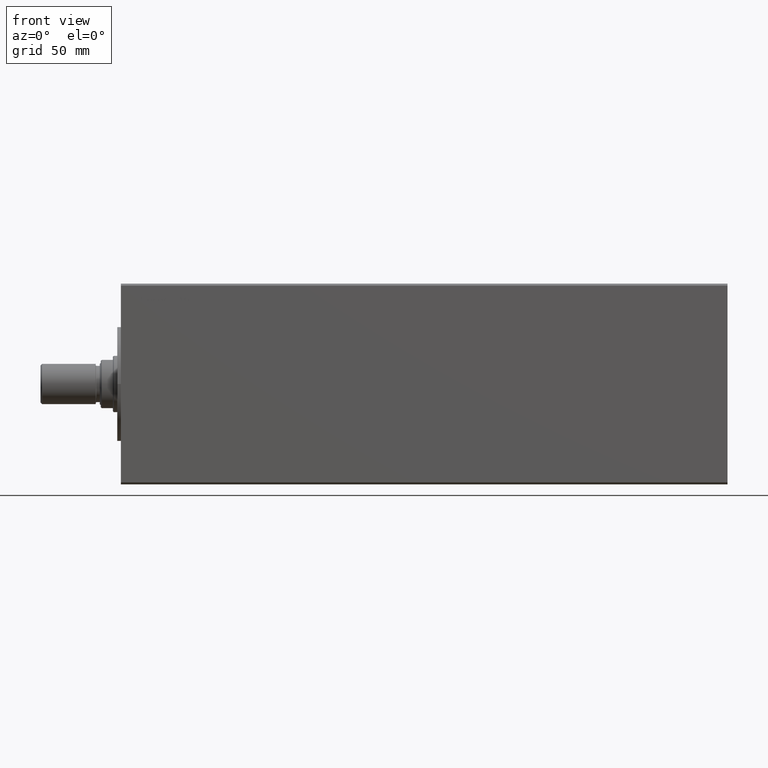
[diagram: clean part render]
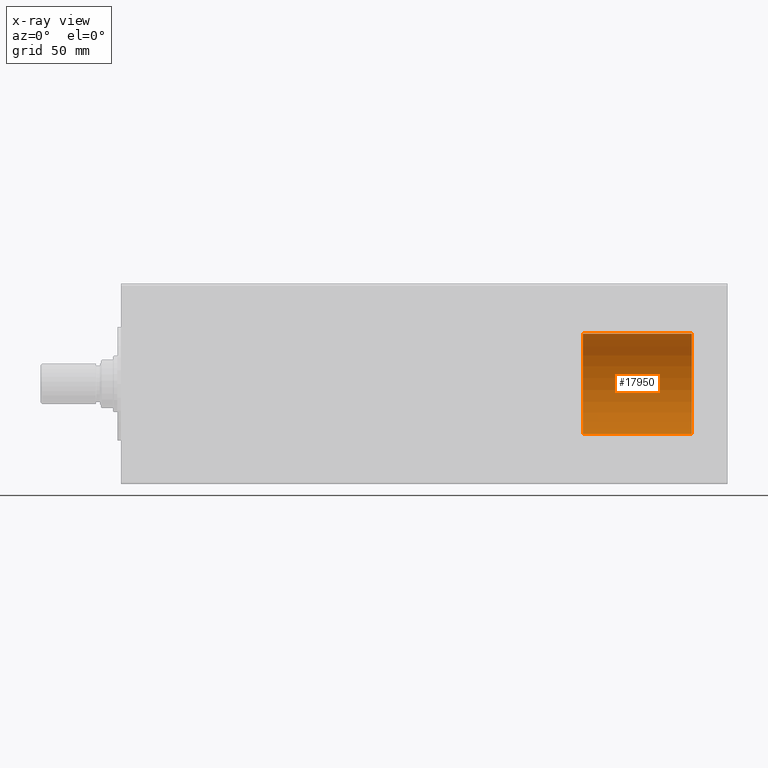
[diagram: x-ray — body ghosted, one internal face saturated and labeled with its STEP entity id]
A machine part, front view, then the same camera in x-ray: the body is ghosted and one INTERNAL B-rep face — a face not visible from any outside direction — is saturated and labeled: STEP entity #17950.
In plain terms, the highlighted cylindrical surface (partial cylindrical patch) has radius 25 mm, axis along (1, -0, -0).
Its self-contained STEP definition (entity closure, byte-faithful):
#620 = ORIENTED_EDGE ( 'NONE', *, *, #19148, .T. ) ;
#1606 = CARTESIAN_POINT ( 'NONE',  ( 25.00000000000000000, 3.061616997868382254E-15, 54.20000000000000284 ) ) ;
#1943 = EDGE_LOOP ( 'NONE', ( #10341, #620, #20418, #43334 ) ) ;
#1984 = VERTEX_POINT ( 'NONE', #25204 ) ;
#4398 = AXIS2_PLACEMENT_3D ( 'NONE', #8509, #15031, #38859 ) ;
#4948 = CARTESIAN_POINT ( 'NONE',  ( 0.000000000000000000, 0.000000000000000000, 54.20000000000000284 ) ) ;
#7403 = CARTESIAN_POINT ( 'NONE',  ( -25.00000000000000000, 0.000000000000000000, 0.000000000000000000 ) ) ;
#8509 = CARTESIAN_POINT ( 'NONE',  ( 0.000000000000000000, 0.000000000000000000, 54.20000000000000284 ) ) ;
#10341 = ORIENTED_EDGE ( 'NONE', *, *, #36821, .F. ) ;
#12367 = DIRECTION ( 'NONE',  ( -1.000000000000000000, 0.000000000000000000, 0.000000000000000000 ) ) ;
#14778 = EDGE_CURVE ( 'NONE', #31458, #43990, #33450, .T. ) ;
#15031 = DIRECTION ( 'NONE',  ( 0.000000000000000000, 0.000000000000000000, 1.000000000000000000 ) ) ;
#16336 = DIRECTION ( 'NONE',  ( 0.000000000000000000, 0.000000000000000000, 1.000000000000000000 ) ) ;
#16919 = AXIS2_PLACEMENT_3D ( 'NONE', #19704, #16336, #33431 ) ;
#17571 = DIRECTION ( 'NONE',  ( -0.000000000000000000, -0.000000000000000000, -1.000000000000000000 ) ) ;
#17950 = ADVANCED_FACE ( 'NONE', ( #25172 ), #43175, .T. ) ;
#19148 = EDGE_CURVE ( 'NONE', #23291, #31458, #32171, .T. ) ;
#19321 = CARTESIAN_POINT ( 'NONE',  ( 25.00000000000000000, 3.061616997868382254E-15, 54.20000000000000284 ) ) ;
#19704 = CARTESIAN_POINT ( 'NONE',  ( 0.000000000000000000, 0.000000000000000000, 0.000000000000000000 ) ) ;
#20418 = ORIENTED_EDGE ( 'NONE', *, *, #14778, .T. ) ;
#22111 = AXIS2_PLACEMENT_3D ( 'NONE', #4948, #42732, #12367 ) ;
#23291 = VERTEX_POINT ( 'NONE', #19321 ) ;
#25172 = FACE_OUTER_BOUND ( 'NONE', #1943, .T. ) ;
#25204 = CARTESIAN_POINT ( 'NONE',  ( -25.00000000000000000, 0.000000000000000000, 54.20000000000000284 ) ) ;
#26023 = CARTESIAN_POINT ( 'NONE',  ( 25.00000000000000000, 3.061616997868382254E-15, 0.000000000000000000 ) ) ;
#28555 = DIRECTION ( 'NONE',  ( -0.000000000000000000, -0.000000000000000000, -1.000000000000000000 ) ) ;
#31458 = VERTEX_POINT ( 'NONE', #26023 ) ;
#31503 = LINE ( 'NONE', #38264, #32054 ) ;
#32054 = VECTOR ( 'NONE', #17571, 1000.000000000000000 ) ;
#32146 = EDGE_CURVE ( 'NONE', #1984, #43990, #31503, .T. ) ;
#32171 = LINE ( 'NONE', #1606, #36512 ) ;
#33431 = DIRECTION ( 'NONE',  ( 1.000000000000000000, 0.000000000000000000, 0.000000000000000000 ) ) ;
#33450 = CIRCLE ( 'NONE', #16919, 25.00000000000000000 ) ;
#36512 = VECTOR ( 'NONE', #28555, 1000.000000000000000 ) ;
#36821 = EDGE_CURVE ( 'NONE', #23291, #1984, #41741, .T. ) ;
#38264 = CARTESIAN_POINT ( 'NONE',  ( -25.00000000000000000, 0.000000000000000000, 54.20000000000000284 ) ) ;
#38859 = DIRECTION ( 'NONE',  ( 1.000000000000000000, 0.000000000000000000, 0.000000000000000000 ) ) ;
#41741 = CIRCLE ( 'NONE', #4398, 25.00000000000000000 ) ;
#42732 = DIRECTION ( 'NONE',  ( -0.000000000000000000, -0.000000000000000000, -1.000000000000000000 ) ) ;
#43175 = CYLINDRICAL_SURFACE ( 'NONE', #22111, 25.00000000000000000 ) ;
#43334 = ORIENTED_EDGE ( 'NONE', *, *, #32146, .F. ) ;
#43990 = VERTEX_POINT ( 'NONE', #7403 ) ;